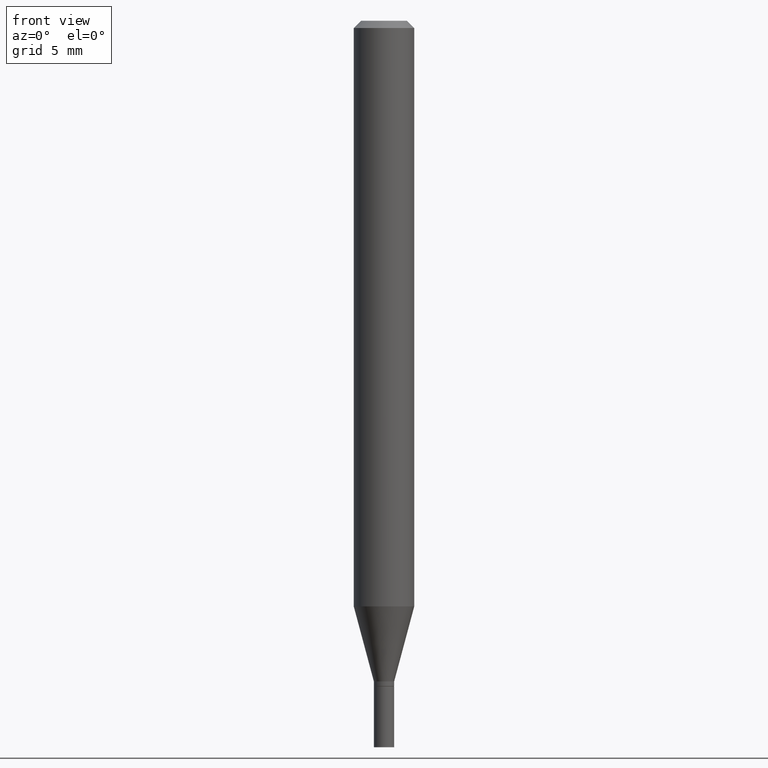
[diagram: clean part render]
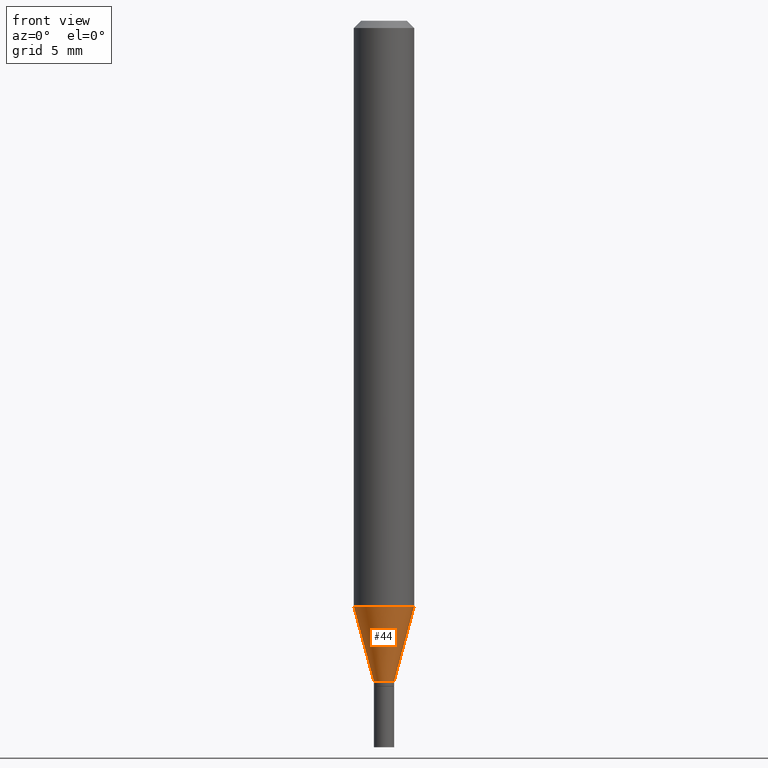
[diagram: same view with one face highlighted and labeled with its STEP entity id]
A machine part, front view. The second image highlights one B-rep face of the part: STEP entity #44.
In plain terms, the highlighted conical surface has half-angle 15 deg.
Its self-contained STEP definition (entity closure, byte-faithful):
#25 = VERTEX_POINT ( 'NONE', #398 ) ;
#39 = AXIS2_PLACEMENT_3D ( 'NONE', #381, #312, #171 ) ;
#40 = VECTOR ( 'NONE', #265, 39.37007874015747433 ) ;
#44 = ADVANCED_FACE ( 'NONE', ( #465 ), #156, .T. ) ;
#49 = EDGE_CURVE ( 'NONE', #306, #105, #214, .T. ) ;
#64 = CARTESIAN_POINT ( 'NONE',  ( 3.335619451636526233E-29, -4.762380546182051062E-15, -1.363999999999999879 ) ) ;
#71 = CARTESIAN_POINT ( 'NONE',  ( 3.335619451636526233E-29, -4.762380546182051062E-15, -1.363999999999999879 ) ) ;
#75 = CARTESIAN_POINT ( 'NONE',  ( 0.02099999999999992151, -4.909022762413462095E-15, -1.363999999999999879 ) ) ;
#105 = VERTEX_POINT ( 'NONE', #195 ) ;
#108 = CIRCLE ( 'NONE', #368, 0.02099999999999992151 ) ;
#140 = DIRECTION ( 'NONE',  ( 1.000000000000000000, -6.982962677686266711E-15, 0.000000000000000000 ) ) ;
#156 = CONICAL_SURFACE ( 'NONE', #239, 0.02099999999999992151, 0.2617993877991500740 ) ;
#166 = CIRCLE ( 'NONE', #39, 0.06250000000000000000 ) ;
#169 = CARTESIAN_POINT ( 'NONE',  ( -0.02099999999999992151, -4.195348449684704235E-15, -1.363999999999999879 ) ) ;
#171 = DIRECTION ( 'NONE',  ( 1.000000000000000000, -6.982962677686270655E-15, 0.000000000000000000 ) ) ;
#180 = ORIENTED_EDGE ( 'NONE', *, *, #361, .F. ) ;
#183 = ORIENTED_EDGE ( 'NONE', *, *, #49, .F. ) ;
#190 = LINE ( 'NONE', #330, #363 ) ;
#193 = EDGE_CURVE ( 'NONE', #423, #25, #190, .T. ) ;
#195 = CARTESIAN_POINT ( 'NONE',  ( -0.06250000000000000000, -3.777530327696978579E-15, -1.209119891485891607 ) ) ;
#211 = DIRECTION ( 'NONE',  ( -2.445468806185136597E-29, 3.491481338843145583E-15, 1.000000000000000000 ) ) ;
#214 = LINE ( 'NONE', #412, #40 ) ;
#239 = AXIS2_PLACEMENT_3D ( 'NONE', #71, #211, #140 ) ;
#244 = EDGE_LOOP ( 'NONE', ( #183, #343, #352, #180 ) ) ;
#265 = DIRECTION ( 'NONE',  ( -0.2588190451025213501, 5.211531920934551042E-15, 0.9659258262890682012 ) ) ;
#296 = EDGE_CURVE ( 'NONE', #306, #423, #108, .T. ) ;
#306 = VERTEX_POINT ( 'NONE', #169 ) ;
#312 = DIRECTION ( 'NONE',  ( -2.445468806185136597E-29, 3.491481338843145583E-15, 1.000000000000000000 ) ) ;
#330 = CARTESIAN_POINT ( 'NONE',  ( 0.02099999999999992151, -4.909022762413462095E-15, -1.363999999999999879 ) ) ;
#343 = ORIENTED_EDGE ( 'NONE', *, *, #296, .T. ) ;
#345 = DIRECTION ( 'NONE',  ( -2.445468806185136597E-29, 3.491481338843145583E-15, 1.000000000000000000 ) ) ;
#349 = DIRECTION ( 'NONE',  ( 1.000000000000000000, -6.982962677686266711E-15, 0.000000000000000000 ) ) ;
#352 = ORIENTED_EDGE ( 'NONE', *, *, #193, .T. ) ;
#361 = EDGE_CURVE ( 'NONE', #105, #25, #166, .T. ) ;
#363 = VECTOR ( 'NONE', #444, 39.37007874015747433 ) ;
#368 = AXIS2_PLACEMENT_3D ( 'NONE', #64, #345, #349 ) ;
#381 = CARTESIAN_POINT ( 'NONE',  ( 2.956864977566705326E-29, -4.221619537547040407E-15, -1.209119891485891607 ) ) ;
#398 = CARTESIAN_POINT ( 'NONE',  ( 0.06250000000000000000, -4.658054704902432076E-15, -1.209119891485891607 ) ) ;
#412 = CARTESIAN_POINT ( 'NONE',  ( -0.02099999999999992151, -4.613166571672430680E-15, -1.363999999999999879 ) ) ;
#423 = VERTEX_POINT ( 'NONE', #75 ) ;
#444 = DIRECTION ( 'NONE',  ( 0.2588190451025213501, 1.565188264969621968E-15, 0.9659258262890682012 ) ) ;
#465 = FACE_OUTER_BOUND ( 'NONE', #244, .T. ) ;